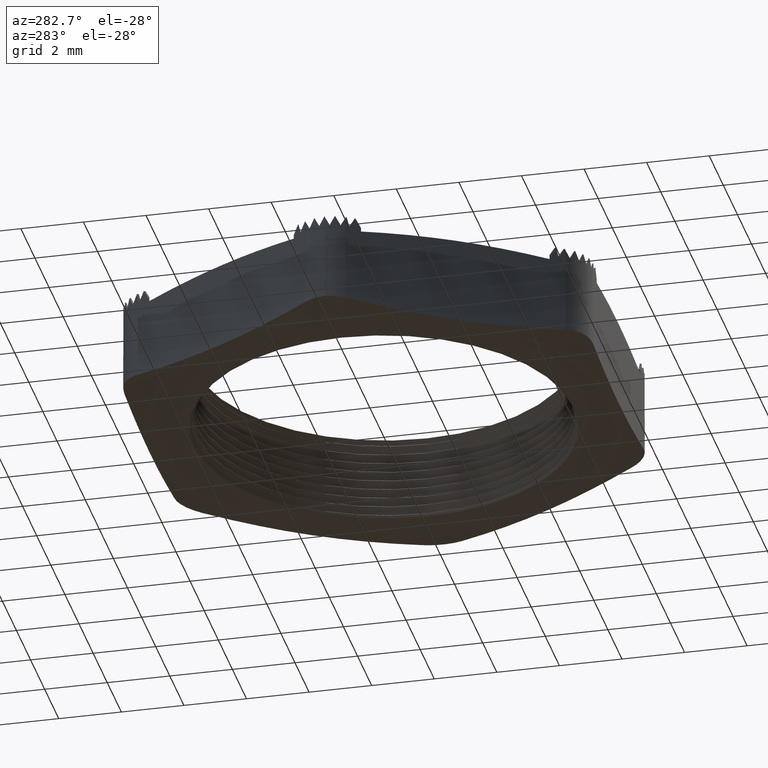
[diagram: clean part render]
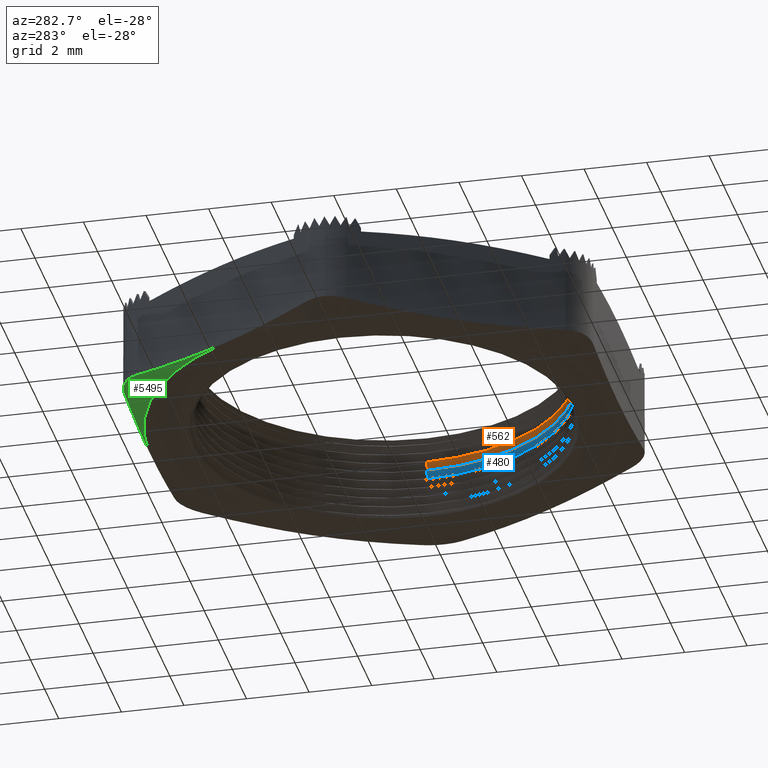
[diagram: same view with three faces highlighted in distinct colors, each labeled with its STEP entity id]
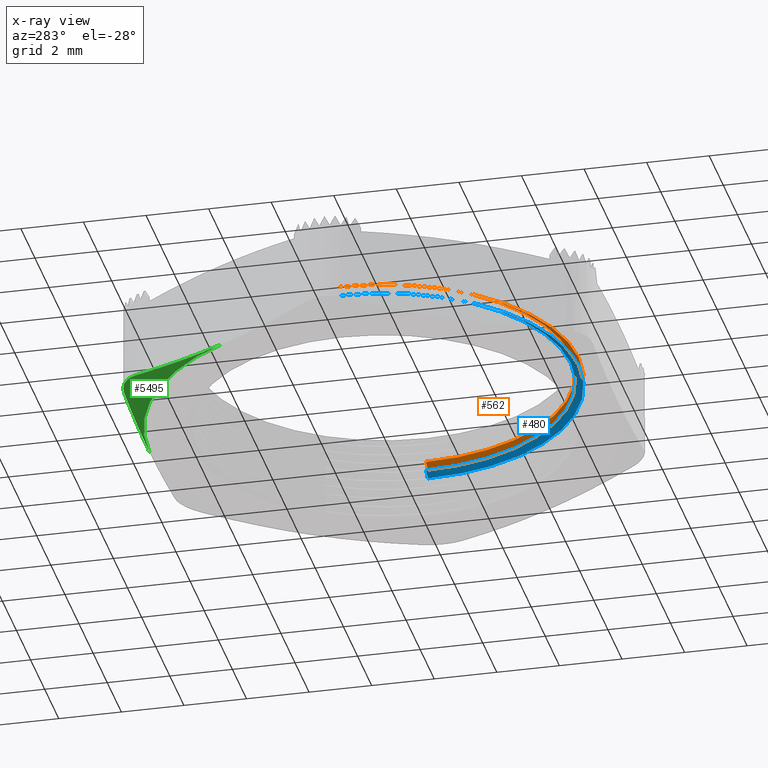
[diagram: x-ray of the same camera — body ghosted, the three highlighted faces saturated]
A machine part, auxiliary view with three faces highlighted in distinct colors.
The next image is the same camera in x-ray (body ghosted, the three faces saturated) — at least one of them is partly hidden behind the body in this view.
Their STEP definitions:

[orange] entity #562 — the highlighted conical surface has half-angle 60 deg.
#562 = ADVANCED_FACE ( 'NONE', ( #1910 ), #1908, .F. ) ;
#563 = ORIENTED_EDGE ( 'NONE', *, *, #564, .T. ) ;
#564 = EDGE_CURVE ( 'NONE', #614, #615, #1970, .T. ) ;
#565 = EDGE_CURVE ( 'NONE', #615, #660, #1965, .T. ) ;
#566 = ORIENTED_EDGE ( 'NONE', *, *, #655, .F. ) ;
#567 = ORIENTED_EDGE ( 'NONE', *, *, #568, .F. ) ;
#568 = EDGE_CURVE ( 'NONE', #614, #658, #1961, .T. ) ;
#614 = VERTEX_POINT ( 'NONE', #2061 ) ;
#615 = VERTEX_POINT ( 'NONE', #2060 ) ;
#616 = ORIENTED_EDGE ( 'NONE', *, *, #565, .T. ) ;
#655 = EDGE_CURVE ( 'NONE', #658, #660, #2116, .T. ) ;
#656 = EDGE_LOOP ( 'NONE', ( #563, #616, #566, #567 ) ) ;
#658 = VERTEX_POINT ( 'NONE', #2107 ) ;
#660 = VERTEX_POINT ( 'NONE', #2106 ) ;
#1908 = CONICAL_SURFACE ( 'NONE', #1973, 0.2450000000000000000, 1.047197551196609000 ) ;
#1909 = CARTESIAN_POINT ( 'NONE',  ( 0.0000000000000000000, 0.0000000000000000000, 0.06822649730810390100 ) ) ;
#1910 = FACE_OUTER_BOUND ( 'NONE', #656, .T. ) ;
#1958 = DIRECTION ( 'NONE',  ( -0.8660254037844441500, 0.0000000000000000000, -0.4999999999999902300 ) ) ;
#1959 = VECTOR ( 'NONE', #1958, 39.37007874015748100 ) ;
#1960 = CARTESIAN_POINT ( 'NONE',  ( -0.2450000000000000000, 0.0000000000000000000, 0.06822649730810390100 ) ) ;
#1961 = LINE ( 'NONE', #1960, #1959 ) ;
#1962 = DIRECTION ( 'NONE',  ( 0.8660254037844441500, 1.060575238724913900E-016, -0.4999999999999902300 ) ) ;
#1963 = VECTOR ( 'NONE', #1962, 39.37007874015748100 ) ;
#1964 = CARTESIAN_POINT ( 'NONE',  ( 0.2450000000000000000, 3.000384657911014900E-017, 0.06822649730810390100 ) ) ;
#1965 = LINE ( 'NONE', #1964, #1963 ) ;
#1966 = DIRECTION ( 'NONE',  ( 1.000000000000000000, 0.0000000000000000000, 0.0000000000000000000 ) ) ;
#1967 = DIRECTION ( 'NONE',  ( 0.0000000000000000000, 0.0000000000000000000, 1.000000000000000000 ) ) ;
#1968 = CARTESIAN_POINT ( 'NONE',  ( 0.0000000000000000000, 0.0000000000000000000, 0.07400000000000001000 ) ) ;
#1969 = AXIS2_PLACEMENT_3D ( 'NONE', #1968, #1967, #1966 ) ;
#1970 = CIRCLE ( 'NONE', #1969, 0.2349999999999999900 ) ;
#1971 = DIRECTION ( 'NONE',  ( -1.000000000000000000, 0.0000000000000000000, 0.0000000000000000000 ) ) ;
#1972 = DIRECTION ( 'NONE',  ( 0.0000000000000000000, 0.0000000000000000000, -1.000000000000000000 ) ) ;
#1973 = AXIS2_PLACEMENT_3D ( 'NONE', #1909, #1972, #1971 ) ;
#2060 = CARTESIAN_POINT ( 'NONE',  ( 0.2349999999999999900, 2.877919977996279800E-017, 0.07400000000000001000 ) ) ;
#2061 = CARTESIAN_POINT ( 'NONE',  ( -0.2349999999999999900, 0.0000000000000000000, 0.07400000000000001000 ) ) ;
#2106 = CARTESIAN_POINT ( 'NONE',  ( 0.2450000000000000000, 3.000384657911014900E-017, 0.06822649730810390100 ) ) ;
#2107 = CARTESIAN_POINT ( 'NONE',  ( -0.2450000000000000000, 0.0000000000000000000, 0.06822649730810390100 ) ) ;
#2112 = DIRECTION ( 'NONE',  ( 1.000000000000000000, 0.0000000000000000000, 0.0000000000000000000 ) ) ;
#2113 = DIRECTION ( 'NONE',  ( 0.0000000000000000000, 0.0000000000000000000, 1.000000000000000000 ) ) ;
#2114 = CARTESIAN_POINT ( 'NONE',  ( 0.0000000000000000000, 0.0000000000000000000, 0.06822649730810390100 ) ) ;
#2115 = AXIS2_PLACEMENT_3D ( 'NONE', #2114, #2113, #2112 ) ;
#2116 = CIRCLE ( 'NONE', #2115, 0.2450000000000000000 ) ;

[blue] entity #480 — the highlighted conical surface has half-angle 60 deg.
#474 = VERTEX_POINT ( 'NONE', #1772 ) ;
#476 = EDGE_CURVE ( 'NONE', #474, #477, #1771, .T. ) ;
#477 = VERTEX_POINT ( 'NONE', #1766 ) ;
#480 = ADVANCED_FACE ( 'NONE', ( #1761 ), #1759, .F. ) ;
#481 = EDGE_LOOP ( 'NONE', ( #520, #524, #579, #648 ) ) ;
#520 = ORIENTED_EDGE ( 'NONE', *, *, #521, .T. ) ;
#521 = EDGE_CURVE ( 'NONE', #522, #523, #1875, .T. ) ;
#522 = VERTEX_POINT ( 'NONE', #1870 ) ;
#523 = VERTEX_POINT ( 'NONE', #1869 ) ;
#524 = ORIENTED_EDGE ( 'NONE', *, *, #525, .T. ) ;
#525 = EDGE_CURVE ( 'NONE', #523, #477, #1868, .T. ) ;
#552 = EDGE_CURVE ( 'NONE', #522, #474, #1930, .T. ) ;
#579 = ORIENTED_EDGE ( 'NONE', *, *, #476, .F. ) ;
#648 = ORIENTED_EDGE ( 'NONE', *, *, #552, .F. ) ;
#1755 = DIRECTION ( 'NONE',  ( -1.000000000000000000, 0.0000000000000000000, 0.0000000000000000000 ) ) ;
#1756 = DIRECTION ( 'NONE',  ( 0.0000000000000000000, 0.0000000000000000000, -1.000000000000000000 ) ) ;
#1757 = CARTESIAN_POINT ( 'NONE',  ( 0.0000000000000000000, 0.0000000000000000000, 0.05622649730810390400 ) ) ;
#1758 = AXIS2_PLACEMENT_3D ( 'NONE', #1757, #1756, #1755 ) ;
#1759 = CONICAL_SURFACE ( 'NONE', #1758, 0.2450000000000000000, 1.047197551196609000 ) ;
#1761 = FACE_OUTER_BOUND ( 'NONE', #481, .T. ) ;
#1766 = CARTESIAN_POINT ( 'NONE',  ( 0.2450000000000000000, 3.000384657911014900E-017, 0.05622649730810390400 ) ) ;
#1767 = DIRECTION ( 'NONE',  ( 1.000000000000000000, 0.0000000000000000000, 0.0000000000000000000 ) ) ;
#1768 = DIRECTION ( 'NONE',  ( 0.0000000000000000000, 0.0000000000000000000, 1.000000000000000000 ) ) ;
#1769 = CARTESIAN_POINT ( 'NONE',  ( 0.0000000000000000000, 0.0000000000000000000, 0.05622649730810390400 ) ) ;
#1770 = AXIS2_PLACEMENT_3D ( 'NONE', #1769, #1768, #1767 ) ;
#1771 = CIRCLE ( 'NONE', #1770, 0.2450000000000000000 ) ;
#1772 = CARTESIAN_POINT ( 'NONE',  ( -0.2450000000000000000, 0.0000000000000000000, 0.05622649730810390400 ) ) ;
#1865 = DIRECTION ( 'NONE',  ( 0.8660254037844441500, 1.060575238724913900E-016, -0.4999999999999902300 ) ) ;
#1866 = VECTOR ( 'NONE', #1865, 39.37007874015748100 ) ;
#1867 = CARTESIAN_POINT ( 'NONE',  ( 0.2450000000000000000, 3.000384657911014900E-017, 0.05622649730810390400 ) ) ;
#1868 = LINE ( 'NONE', #1867, #1866 ) ;
#1869 = CARTESIAN_POINT ( 'NONE',  ( 0.2349999999999999900, 2.877919977996279800E-017, 0.06200000000000000600 ) ) ;
#1870 = CARTESIAN_POINT ( 'NONE',  ( -0.2349999999999999900, 0.0000000000000000000, 0.06200000000000000600 ) ) ;
#1871 = DIRECTION ( 'NONE',  ( 1.000000000000000000, 0.0000000000000000000, 0.0000000000000000000 ) ) ;
#1872 = DIRECTION ( 'NONE',  ( 0.0000000000000000000, 0.0000000000000000000, 1.000000000000000000 ) ) ;
#1873 = CARTESIAN_POINT ( 'NONE',  ( 0.0000000000000000000, 0.0000000000000000000, 0.06200000000000000600 ) ) ;
#1874 = AXIS2_PLACEMENT_3D ( 'NONE', #1873, #1872, #1871 ) ;
#1875 = CIRCLE ( 'NONE', #1874, 0.2349999999999999900 ) ;
#1927 = DIRECTION ( 'NONE',  ( -0.8660254037844441500, 0.0000000000000000000, -0.4999999999999902300 ) ) ;
#1928 = VECTOR ( 'NONE', #1927, 39.37007874015748100 ) ;
#1929 = CARTESIAN_POINT ( 'NONE',  ( -0.2450000000000000000, 0.0000000000000000000, 0.05622649730810390400 ) ) ;
#1930 = LINE ( 'NONE', #1929, #1928 ) ;

[green] entity #5495 — the highlighted conical surface has half-angle 75 deg.
#712 = VERTEX_POINT ( 'NONE', #2193 ) ;
#862 = VERTEX_POINT ( 'NONE', #2482 ) ;
#867 = EDGE_CURVE ( 'NONE', #712, #862, #2529, .T. ) ;
#1022 = EDGE_CURVE ( 'NONE', #1023, #1041, #2815, .T. ) ;
#1023 = VERTEX_POINT ( 'NONE', #2814 ) ;
#1041 = VERTEX_POINT ( 'NONE', #2836 ) ;
#2193 = CARTESIAN_POINT ( 'NONE',  ( -0.2554774941164093500, 0.1474999999999999400, 0.0000000000000000000 ) ) ;
#2482 = CARTESIAN_POINT ( 'NONE',  ( -0.1847520861406801700, 0.2700000000000000700, 0.008617109962662716400 ) ) ;
#2524 = CARTESIAN_POINT ( 'NONE',  ( -0.1847520861406801700, 0.2700000000000000700, 0.008617109962662716400 ) ) ;
#2525 = CARTESIAN_POINT ( 'NONE',  ( -0.2083272221325899200, 0.2291666666666667100, 0.003154721447310815200 ) ) ;
#2526 = CARTESIAN_POINT ( 'NONE',  ( -0.2319023581244996400, 0.1883333333333333200, -7.751908167318360000E-017 ) ) ;
#2527 = CARTESIAN_POINT ( 'NONE',  ( -0.2554774941164093500, 0.1474999999999999400, 0.0000000000000000000 ) ) ;
#2529 = B_SPLINE_CURVE_WITH_KNOTS ( 'NONE', 3,
 ( #2527, #2526, #2525, #2524 ),
 .UNSPECIFIED., .F., .F.,
 ( 4, 4 ),
 ( 0.003593081665274710500, 0.007185932390441755200 ),
 .UNSPECIFIED. ) ;
#2807 = CARTESIAN_POINT ( 'NONE',  ( -2.957312202238501300E-017, 0.2950000000000000400, 0.0000000000000000000 ) ) ;
#2808 = CARTESIAN_POINT ( 'NONE',  ( -0.02352928609322991300, 0.2950000000000001000, -4.015069561000699100E-017 ) ) ;
#2809 = CARTESIAN_POINT ( 'NONE',  ( -0.04708934561614213500, 0.2950000000000001000, 0.0007643607898576711900 ) ) ;
#2810 = CARTESIAN_POINT ( 'NONE',  ( -0.09426649561501436500, 0.2950000000000001000, 0.003709636350318036800 ) ) ;
#2811 = CARTESIAN_POINT ( 'NONE',  ( -0.1179192798982759100, 0.2949999999999999800, 0.005890966785175041400 ) ) ;
#2812 = CARTESIAN_POINT ( 'NONE',  ( -0.1414508159514582000, 0.2950000000000000400, 0.008617109962662693900 ) ) ;
#2814 = CARTESIAN_POINT ( 'NONE',  ( -0.1414508159514582000, 0.2950000000000000400, 0.008617109962662693900 ) ) ;
#2815 = B_SPLINE_CURVE_WITH_KNOTS ( 'NONE', 3,
 ( #2812, #2811, #2810, #2809, #2808, #2807 ),
 .UNSPECIFIED., .F., .F.,
 ( 4, 2, 4 ),
 ( 0.007378778710628159500, 0.009181071290591730200, 0.01098336387055529900 ),
 .UNSPECIFIED. ) ;
#2836 = CARTESIAN_POINT ( 'NONE',  ( -2.957312202238501300E-017, 0.2950000000000000400, 0.0000000000000000000 ) ) ;
#3014 = DIRECTION ( 'NONE',  ( -1.000000000000000000, 0.0000000000000000000, 0.0000000000000000000 ) ) ;
#3015 = DIRECTION ( 'NONE',  ( 0.0000000000000000000, 0.0000000000000000000, -1.000000000000000000 ) ) ;
#3016 = CARTESIAN_POINT ( 'NONE',  ( 0.0000000000000000000, 0.0000000000000000000, 0.0000000000000000000 ) ) ;
#3017 = AXIS2_PLACEMENT_3D ( 'NONE', #3016, #3015, #3014 ) ;
#3018 = CIRCLE ( 'NONE', #3017, 0.2950000000000002100 ) ;
#3050 = CARTESIAN_POINT ( 'NONE',  ( -0.1847520861406801700, 0.2700000000000000700, 0.008617109962662716400 ) ) ;
#3051 = CARTESIAN_POINT ( 'NONE',  ( -0.1825604623311909700, 0.2737960037891129500, 0.009124911942300221700 ) ) ;
#3052 = CARTESIAN_POINT ( 'NONE',  ( -0.1798863709256198800, 0.2772738803794098100, 0.009508827423225396600 ) ) ;
#3053 = CARTESIAN_POINT ( 'NONE',  ( -0.1737402160286268000, 0.2834225179233845200, 0.01002382068979067700 ) ) ;
#3054 = CARTESIAN_POINT ( 'NONE',  ( -0.1702022769033215400, 0.2861374450421984600, 0.01015612219566609100 ) ) ;
#3055 = CARTESIAN_POINT ( 'NONE',  ( -0.1626633837130977100, 0.2904858534098709300, 0.01015529916098926300 ) ) ;
#3056 = CARTESIAN_POINT ( 'NONE',  ( -0.1585654595221939700, 0.2921819097164596300, 0.01002347834876034600 ) ) ;
#3057 = CARTESIAN_POINT ( 'NONE',  ( -0.1501330662370329300, 0.2944334113634100600, 0.009505147967862953200 ) ) ;
#3058 = CARTESIAN_POINT ( 'NONE',  ( -0.1458338205392746800, 0.2949999999999999800, 0.009124883786988028900 ) ) ;
#3059 = CARTESIAN_POINT ( 'NONE',  ( -0.1414508159514582000, 0.2950000000000000400, 0.008617109962662693900 ) ) ;
#3064 = B_SPLINE_CURVE_WITH_KNOTS ( 'NONE', 3,
 ( #3059, #3058, #3057, #3056, #3055, #3054, #3053, #3052, #3051, #3050 ),
 .UNSPECIFIED., .F., .F.,
 ( 4, 2, 2, 2, 4 ),
 ( 1.985145349508864700E-007, 0.0003317067072586545000, 0.0006632148999823581400, 0.0009947230927060618900, 0.001326231285429765500 ),
 .UNSPECIFIED. ) ;
#3559 = FACE_OUTER_BOUND ( 'NONE', #5496, .T. ) ;
#3601 = DIRECTION ( 'NONE',  ( -1.000000000000000000, 0.0000000000000000000, 0.0000000000000000000 ) ) ;
#3602 = DIRECTION ( 'NONE',  ( 0.0000000000000000000, 0.0000000000000000000, 1.000000000000000000 ) ) ;
#3603 = CARTESIAN_POINT ( 'NONE',  ( 0.0000000000000000000, 0.0000000000000000000, 0.0000000000000000000 ) ) ;
#3604 = AXIS2_PLACEMENT_3D ( 'NONE', #3603, #3602, #3601 ) ;
#3605 = CONICAL_SURFACE ( 'NONE', #3604, 0.2950000000000002100, 1.308996938995750100 ) ;
#5154 = EDGE_CURVE ( 'NONE', #712, #1041, #3018, .T. ) ;
#5181 = EDGE_CURVE ( 'NONE', #1023, #862, #3064, .T. ) ;
#5495 = ADVANCED_FACE ( 'NONE', ( #3559 ), #3605, .T. ) ;
#5496 = EDGE_LOOP ( 'NONE', ( #5497, #5498, #5499, #5500 ) ) ;
#5497 = ORIENTED_EDGE ( 'NONE', *, *, #867, .T. ) ;
#5498 = ORIENTED_EDGE ( 'NONE', *, *, #5181, .F. ) ;
#5499 = ORIENTED_EDGE ( 'NONE', *, *, #1022, .T. ) ;
#5500 = ORIENTED_EDGE ( 'NONE', *, *, #5154, .F. ) ;